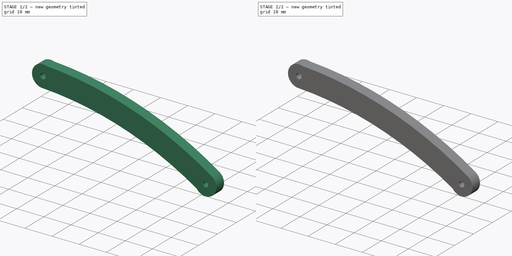
[diagram: build sequence overview — one tinted view per stage of 2, left to right]
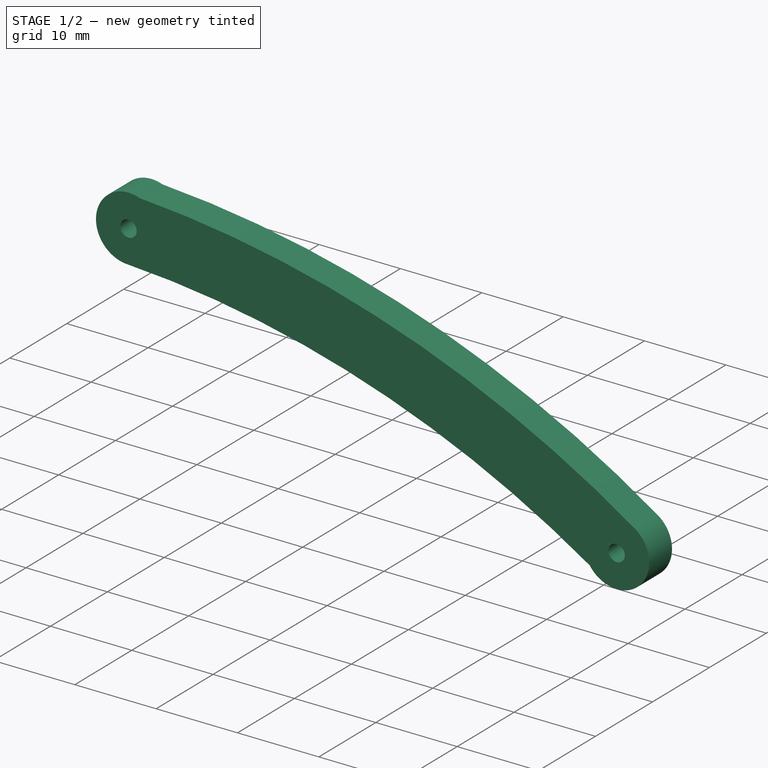
[diagram: stage 1 of 2 — iso view after this stage's code; geometry added in this stage tinted green]
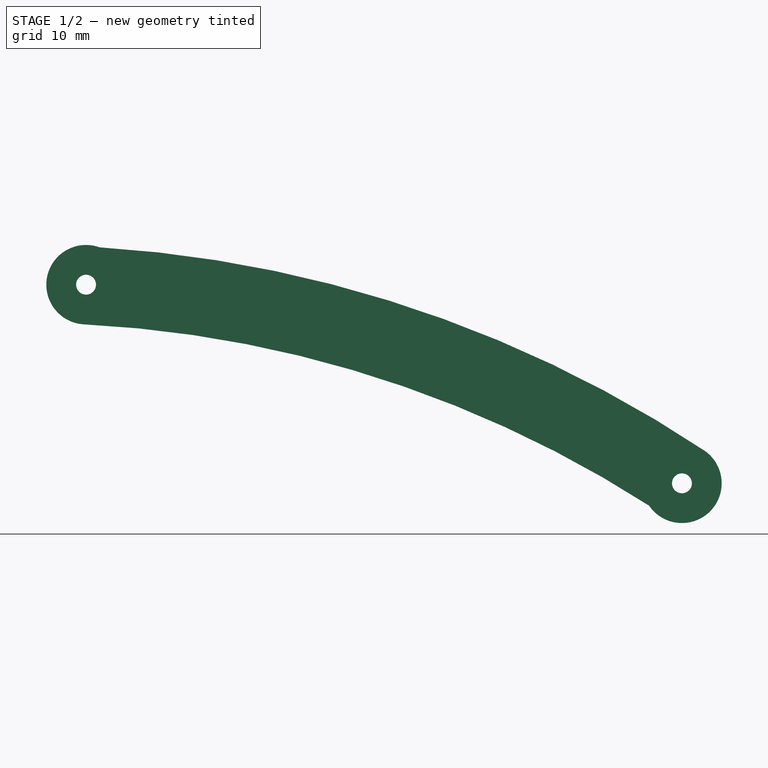
[diagram: stage 1 of 2 — front view after this stage's code; geometry added in this stage tinted green]
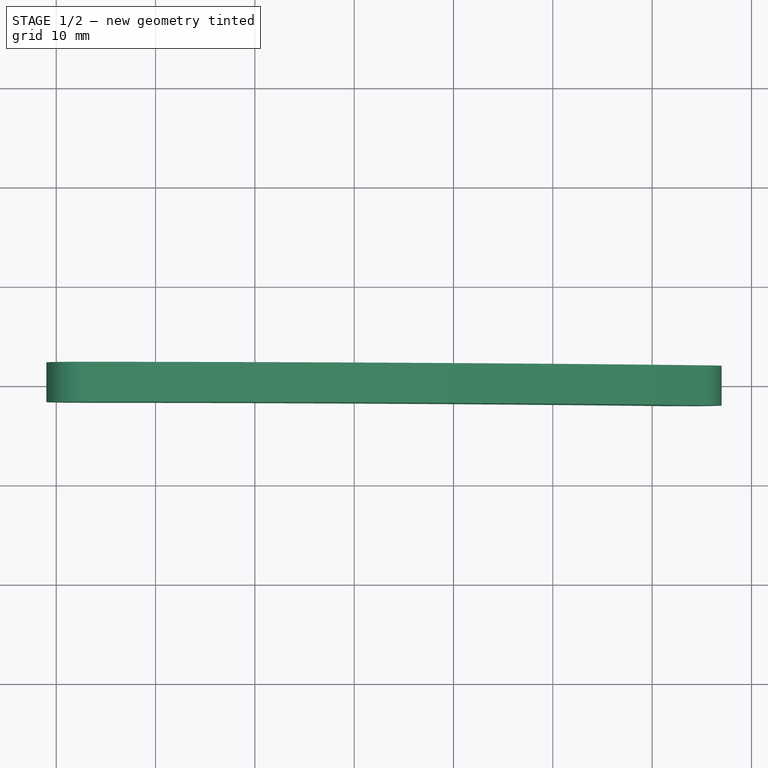
[diagram: stage 1 of 2 — top view after this stage's code; geometry added in this stage tinted green]
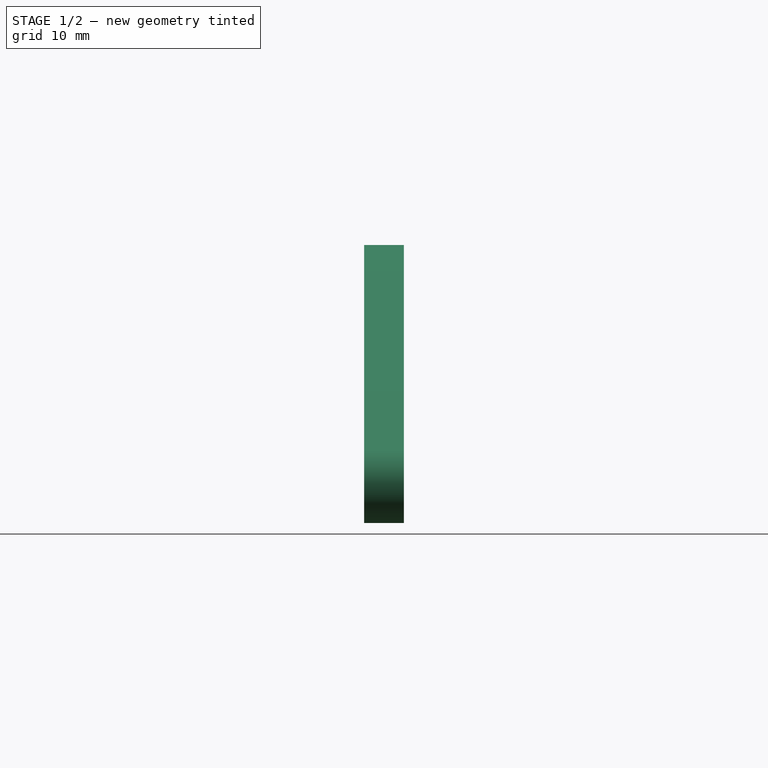
[diagram: stage 1 of 2 — right view after this stage's code; geometry added in this stage tinted green]
FCSTD DOCUMENT  (FreeCAD 0.14R3700 (Git))
Label: bielle sup b
License: CC-BY 3.0
LicenseURL: http://creativecommons.org/licenses/by/3.0/
objects: Sketcher::SketchObject×2, PartDesign::Pad×1, PartDesign::Pocket×1
note: 6 computed .brp shape members not serialized (recipe doc carries the construction recipe); baked Part::Feature solids carry a one-line shape summary decoded from their .brp

FEATURE [Sketcher::SketchObject] Sketch
  Placement = pos=(43,-2,9) rot=(-1,0,0;1.5708rad)
  sketch-geometry (6):
    g0: Circle CenterX=0 CenterY=0 CenterZ=0 NormalX=0 NormalY=0 NormalZ=1 Radius=1
    g1: ArcOfCircle CenterX=0 CenterY=0 CenterZ=0 NormalX=0 NormalY=0 NormalZ=1 Radius=4 StartAngle=1.62666 EndAngle=5.06005
    g2: ArcOfCircle CenterX=60 CenterY=20 CenterZ=0 NormalX=0 NormalY=0 NormalZ=1 Radius=4 StartAngle=5.33542 EndAngle=8.82705
    g3: Circle CenterX=60 CenterY=20 CenterZ=0 NormalX=0 NormalY=0 NormalZ=1 Radius=1
    g4: ArcOfCircle CenterX=-6 CenterY=119.85 CenterZ=0 NormalX=0 NormalY=0 NormalZ=1 Radius=116 StartAngle=4.76221 EndAngle=5.28337
    g5: ArcOfCircle CenterX=-6.33737 CenterY=120 CenterZ=0 NormalX=0 NormalY=0 NormalZ=1 Radius=124 StartAngle=4.77453 EndAngle=5.29931
  constraints (17):
    c: Coincident(g0,g-1)
    c: Coincident(g1,g-1)
    c: Radius(g2) = 4
    c: DistanceX(g-1,g2) = 60
    c: DistanceY(g-1,g2) = 20
    c: Coincident(g3,g2)
    c: Radius(g4) = 116
    c: Radius(g1) = 4
    c: Radius(g5) = 124
    c: Coincident(g4,g2)
    c: Coincident(g4,g1)
    c: Coincident(g5,g1)
    c: Coincident(g2,g5)
    c: Radius(g3) = 1
    c: Radius(g0) = 1
    c: DistanceY(g-1,g5) = 120
    c: DistanceX(g-1,g4) = -6
FEATURE [PartDesign::Pad] Pad
  Length = 4
  Length2 = 100
  Placement = pos=(43,-2,9) rot=(-1,0,0;1.5708rad)
  Sketch = -> Sketch
  Type = 0
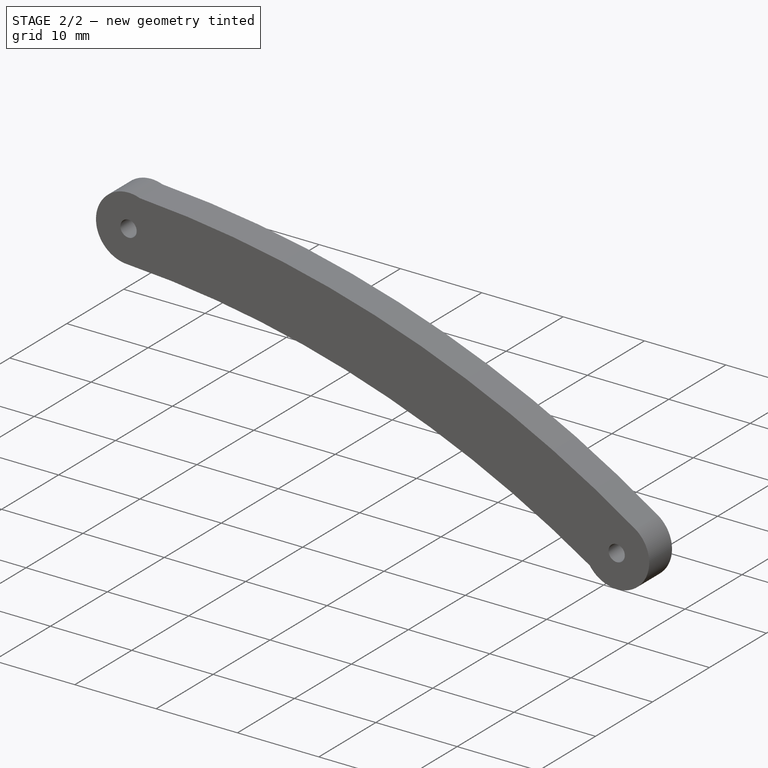
[diagram: stage 2 of 2 — iso view after this stage's code; geometry added in this stage tinted green]
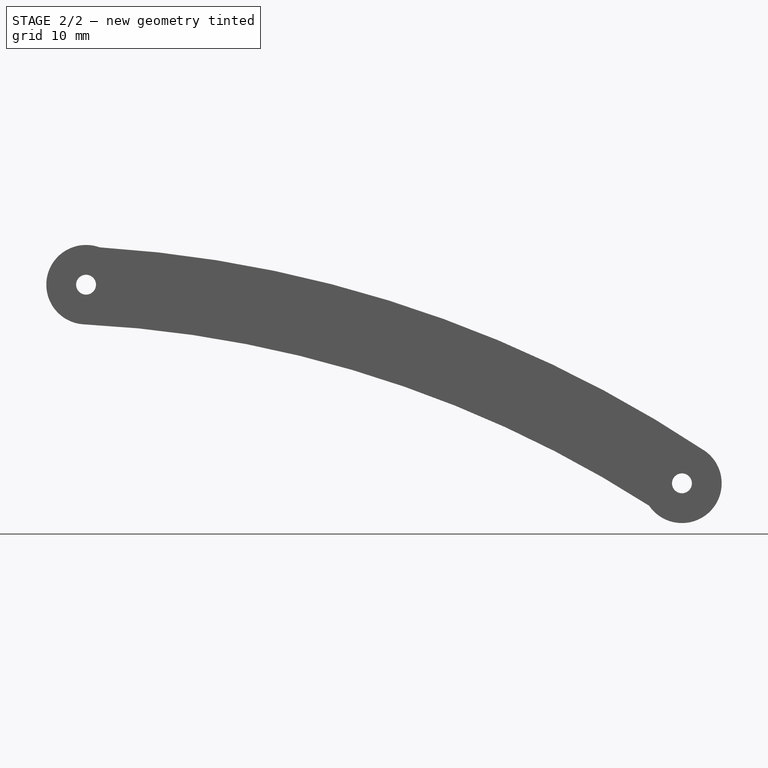
[diagram: stage 2 of 2 — front view after this stage's code; geometry added in this stage tinted green]
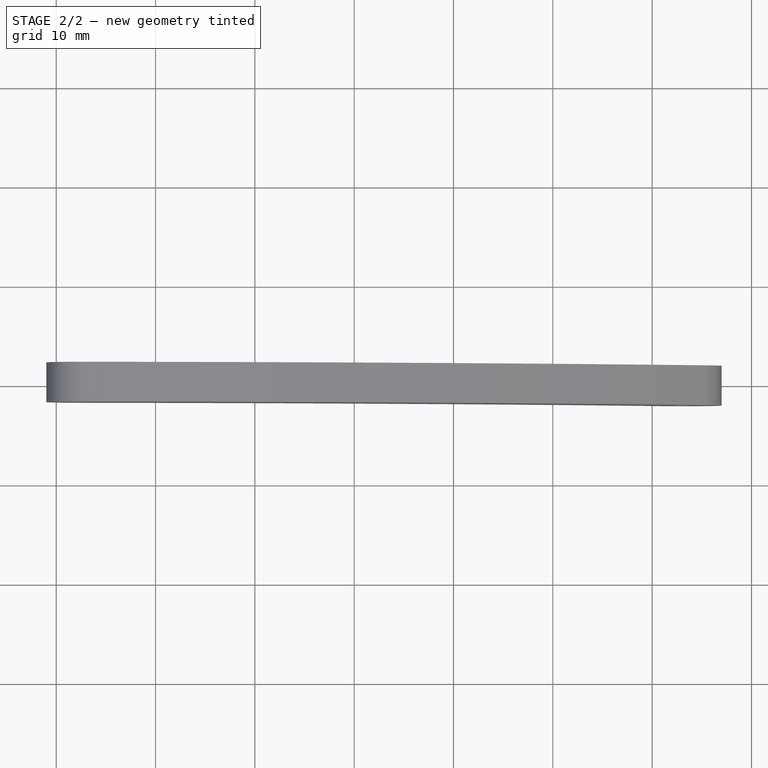
[diagram: stage 2 of 2 — top view after this stage's code; geometry added in this stage tinted green]
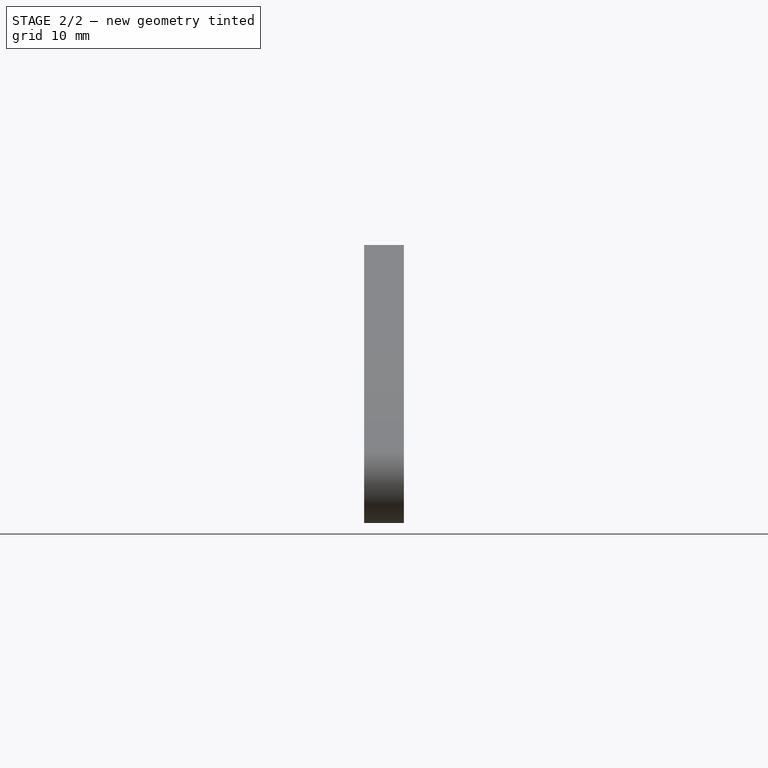
[diagram: stage 2 of 2 — right view after this stage's code; geometry added in this stage tinted green]
FEATURE [Sketcher::SketchObject] Sketch001
  Placement = pos=(43,2,9) rot=(-1,0,0;1.5708rad)
  Support = -> Pad [Face8]
  sketch-geometry (4):
    g0: ArcOfCircle CenterX=-6.52848 CenterY=119.704 CenterZ=0 NormalX=0 NormalY=0 NormalZ=1 Radius=122 StartAngle=4.80228 EndAngle=5.26299
    g1: ArcOfCircle CenterX=-6.5284 CenterY=119.704 CenterZ=0 NormalX=0 NormalY=0 NormalZ=1 Radius=118 StartAngle=4.80228 EndAngle=5.26285
    g2: ArcOfCircle CenterX=56.2483 CenterY=17.4347 CenterZ=0 NormalX=0 NormalY=0 NormalZ=1 Radius=2 StartAngle=5.26718 EndAngle=8.40877
    g3: ArcOfCircle CenterX=4.24345 CenterY=0.188782 CenterZ=0 NormalX=0 NormalY=0 NormalZ=1 Radius=2 StartAngle=1.66067 EndAngle=4.80226
  constraints (8):
    c: Radius(g0) = 122
    c: Radius(g1) = 118
    c: Radius(g2) = 2
    c: Coincident(g2,g0)
    c: Coincident(g2,g1)
    c: Radius(g3) = 2
    c: Coincident(g3,g1)
    c: Coincident(g3,g0)
FEATURE [PartDesign::Pocket] Pocket
  Length = 0.5
  Placement = pos=(43,-2,9) rot=(-1,0,0;1.5708rad)
  Sketch = -> Sketch001
  Type = 0
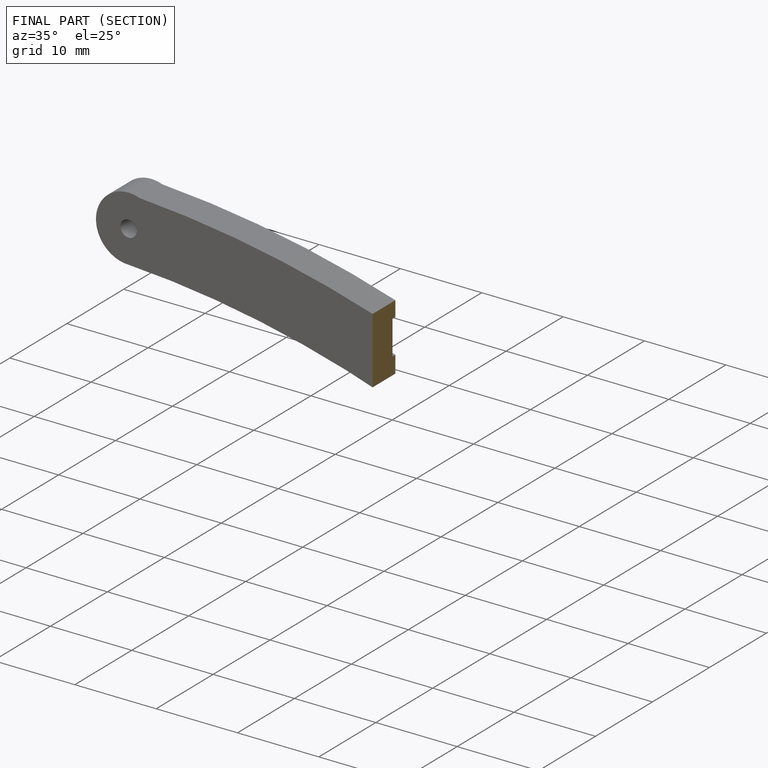
[diagram: finished part — half-section view (interior)]
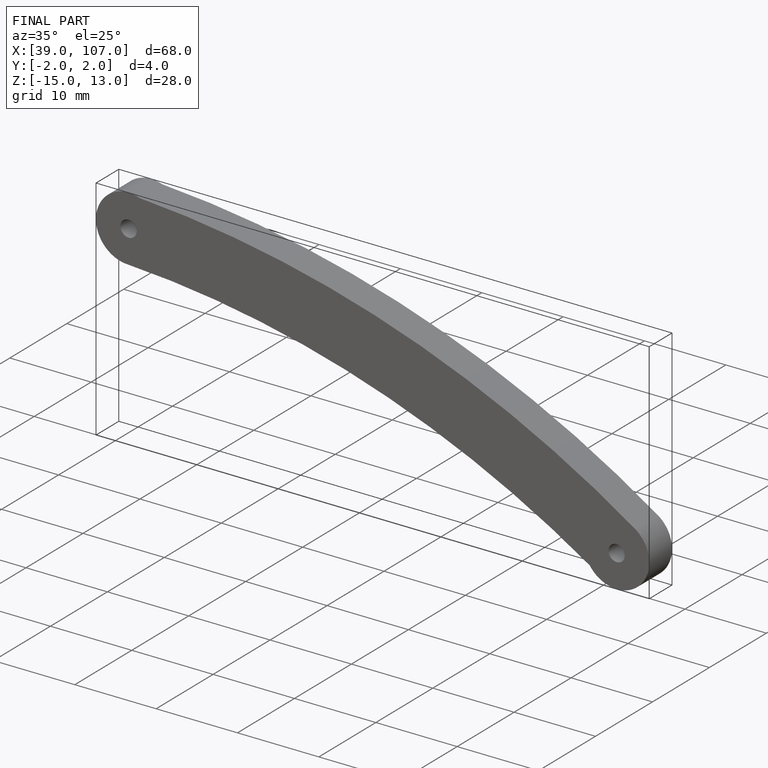
[diagram: finished part — iso view with bounding-box wireframe]
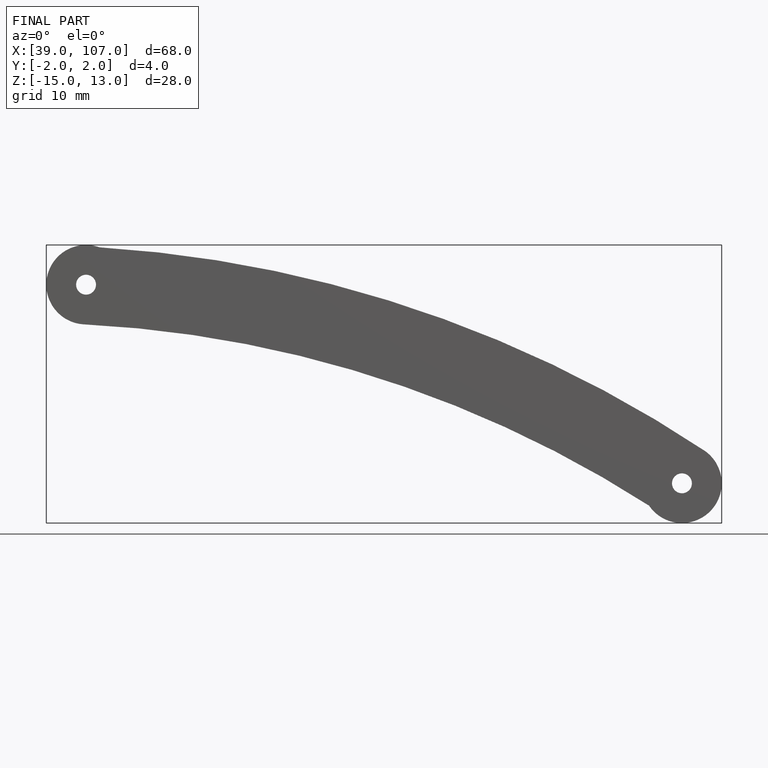
[diagram: finished part — front view with bounding-box wireframe]
